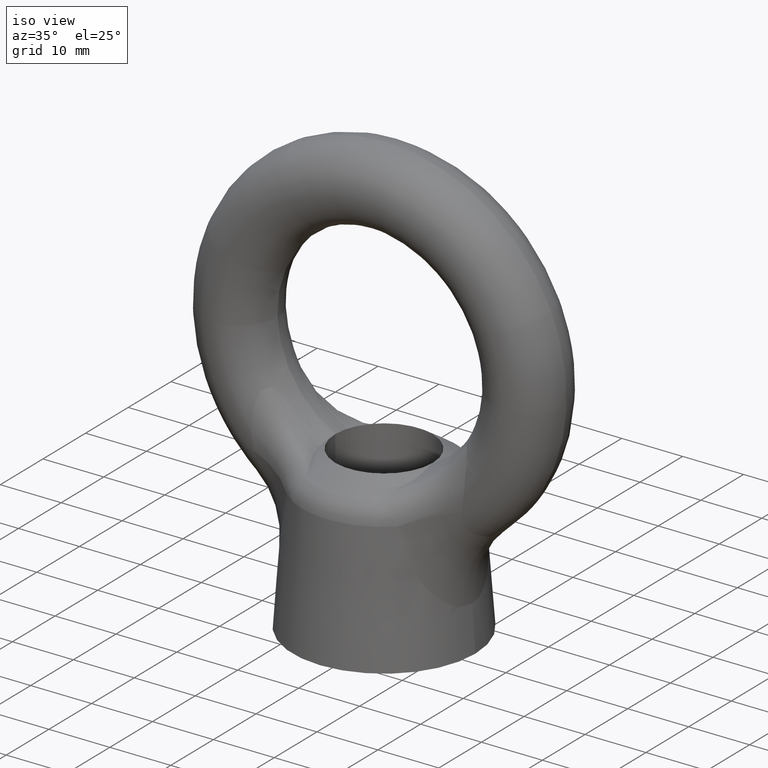
[diagram: clean part render]
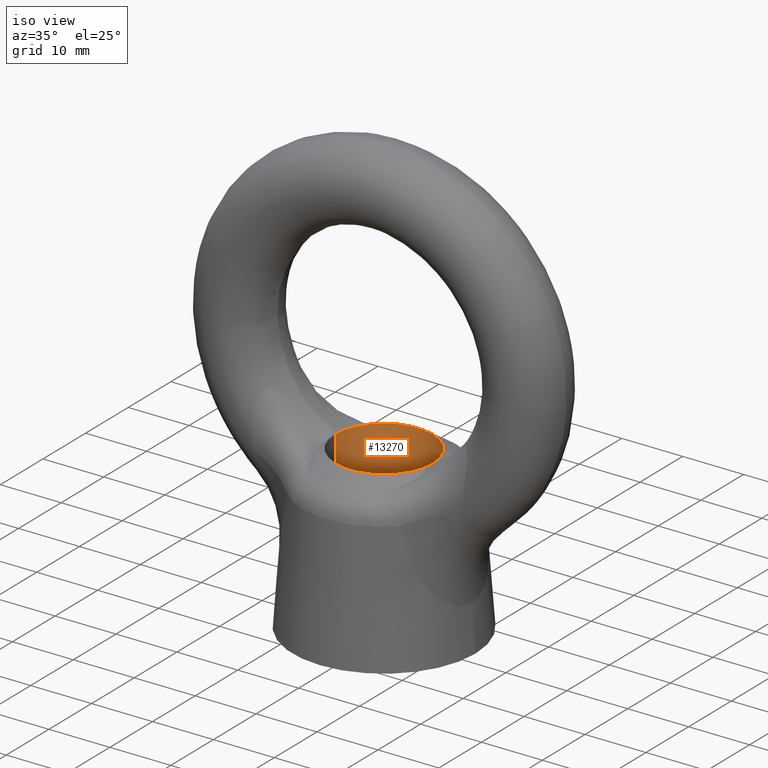
[diagram: same view with one face highlighted and labeled with its STEP entity id]
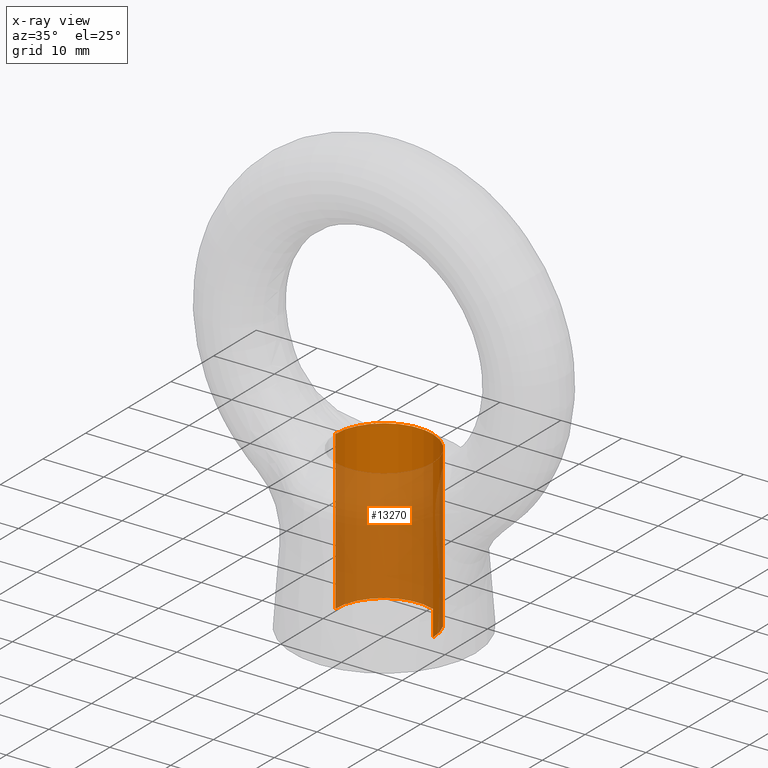
[diagram: x-ray of the same camera — body ghosted, the highlighted face saturated]
A machine part, iso view. The second image highlights one B-rep face of the part: STEP entity #13270.
The next image is the same camera in x-ray: the body ghosted, the highlighted face saturated — about 72% of this face is hidden behind the body in this view.
In plain terms, the highlighted cylindrical surface (partial cylindrical patch) has radius 8 mm, axis along (0, 0, -1).
Its self-contained STEP definition (entity closure, byte-faithful):
#7486 = DIRECTION ( 'NONE',  ( -1.000000000000000000, 0.0000000000000000000, 0.0000000000000000000 ) ) ;
#7487 = DIRECTION ( 'NONE',  ( 0.0000000000000000000, 0.0000000000000000000, -1.000000000000000000 ) ) ;
#7488 = AXIS2_PLACEMENT_3D ( 'NONE', #7490, #7487, #7486 ) ;
#7489 = CYLINDRICAL_SURFACE ( 'NONE', #7488, 8.000000000000000000 ) ;
#7490 = CARTESIAN_POINT ( 'NONE',  ( 0.0000000000000000000, 0.0000000000000000000, 958.0000000000000000 ) ) ;
#7491 = FACE_OUTER_BOUND ( 'NONE', #13271, .T. ) ;
#12551 = CARTESIAN_POINT ( 'NONE',  ( -8.000000000000000000, 0.0000000000000000000, -41.50000000000000000 ) ) ;
#12593 = CARTESIAN_POINT ( 'NONE',  ( 8.000000000000000000, 9.796850830579018100E-016, -41.50000000000000000 ) ) ;
#13026 = EDGE_CURVE ( 'NONE', #13071, #13073, #13303, .T. ) ;
#13048 = EDGE_CURVE ( 'NONE', #13071, #13314, #13346, .T. ) ;
#13051 = EDGE_CURVE ( 'NONE', #13073, #13315, #13340, .T. ) ;
#13071 = VERTEX_POINT ( 'NONE', #13470 ) ;
#13073 = VERTEX_POINT ( 'NONE', #13454 ) ;
#13171 = CARTESIAN_POINT ( 'NONE',  ( 0.0000000000000000000, 0.0000000000000000000, -15.56437700000010200 ) ) ;
#13173 = ORIENTED_EDGE ( 'NONE', *, *, #13174, .T. ) ;
#13174 = EDGE_CURVE ( 'NONE', #13314, #13315, #13668, .T. ) ;
#13270 = ADVANCED_FACE ( 'NONE', ( #7491 ), #7489, .F. ) ;
#13271 = EDGE_LOOP ( 'NONE', ( #13272, #13273, #13274, #13173 ) ) ;
#13272 = ORIENTED_EDGE ( 'NONE', *, *, #13051, .F. ) ;
#13273 = ORIENTED_EDGE ( 'NONE', *, *, #13026, .F. ) ;
#13274 = ORIENTED_EDGE ( 'NONE', *, *, #13048, .T. ) ;
#13300 = DIRECTION ( 'NONE',  ( -1.000000000000000000, 0.0000000000000000000, 0.0000000000000000000 ) ) ;
#13301 = DIRECTION ( 'NONE',  ( 0.0000000000000000000, 0.0000000000000000000, -1.000000000000000000 ) ) ;
#13302 = AXIS2_PLACEMENT_3D ( 'NONE', #13171, #13301, #13300 ) ;
#13303 = CIRCLE ( 'NONE', #13302, 8.000000000000000000 ) ;
#13314 = VERTEX_POINT ( 'NONE', #12551 ) ;
#13315 = VERTEX_POINT ( 'NONE', #12593 ) ;
#13333 = DIRECTION ( 'NONE',  ( 0.0000000000000000000, 0.0000000000000000000, -1.000000000000000000 ) ) ;
#13334 = VECTOR ( 'NONE', #13333, 1000.000000000000000 ) ;
#13335 = CARTESIAN_POINT ( 'NONE',  ( 8.000000000000000000, 9.796850830579018100E-016, 958.0000000000000000 ) ) ;
#13340 = LINE ( 'NONE', #13335, #13334 ) ;
#13343 = DIRECTION ( 'NONE',  ( 0.0000000000000000000, 0.0000000000000000000, -1.000000000000000000 ) ) ;
#13344 = VECTOR ( 'NONE', #13343, 1000.000000000000000 ) ;
#13345 = CARTESIAN_POINT ( 'NONE',  ( -8.000000000000000000, 0.0000000000000000000, 958.0000000000000000 ) ) ;
#13346 = LINE ( 'NONE', #13345, #13344 ) ;
#13454 = CARTESIAN_POINT ( 'NONE',  ( 8.000000000000000000, 0.0000000000000000000, -15.56437700000015000 ) ) ;
#13470 = CARTESIAN_POINT ( 'NONE',  ( -8.000000000000000000, 0.0000000000000000000, -15.56437700000010200 ) ) ;
#13664 = DIRECTION ( 'NONE',  ( -1.000000000000000000, 0.0000000000000000000, 0.0000000000000000000 ) ) ;
#13665 = DIRECTION ( 'NONE',  ( 0.0000000000000000000, 0.0000000000000000000, -1.000000000000000000 ) ) ;
#13666 = CARTESIAN_POINT ( 'NONE',  ( 0.0000000000000000000, 0.0000000000000000000, -41.50000000000000000 ) ) ;
#13667 = AXIS2_PLACEMENT_3D ( 'NONE', #13666, #13665, #13664 ) ;
#13668 = CIRCLE ( 'NONE', #13667, 8.000000000000000000 ) ;